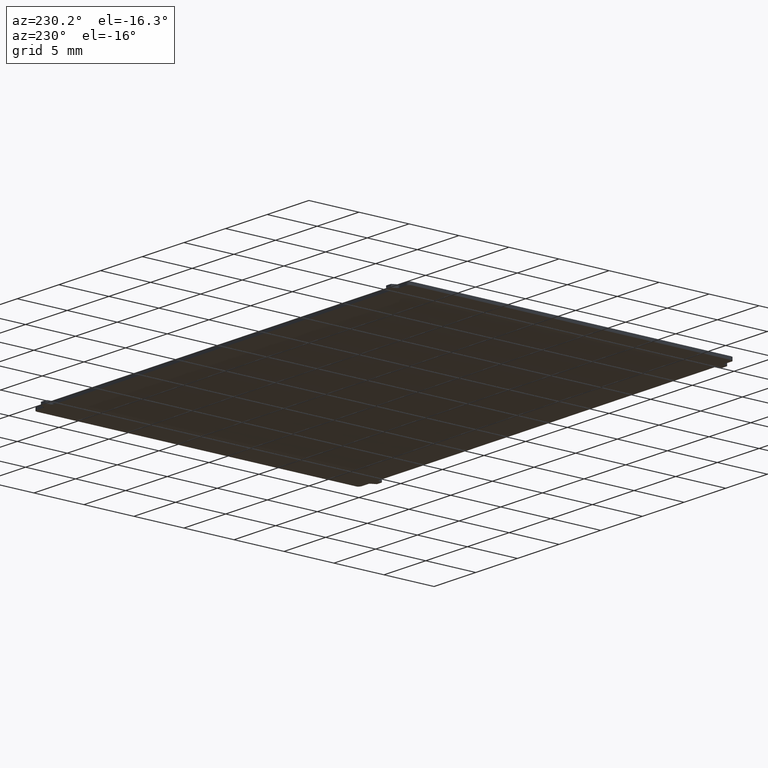
[diagram: clean part render]
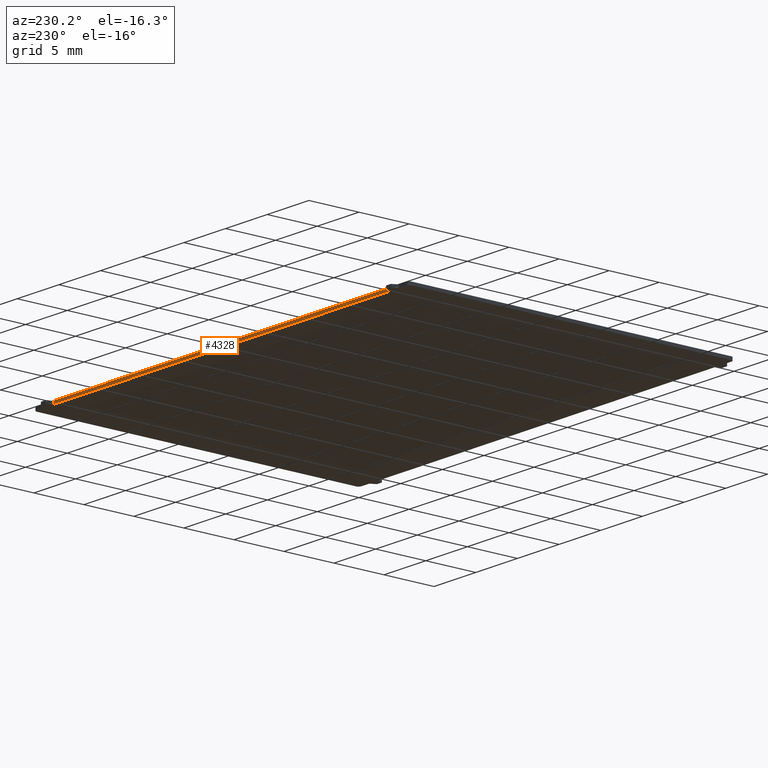
[diagram: same view with one face highlighted and labeled with its STEP entity id]
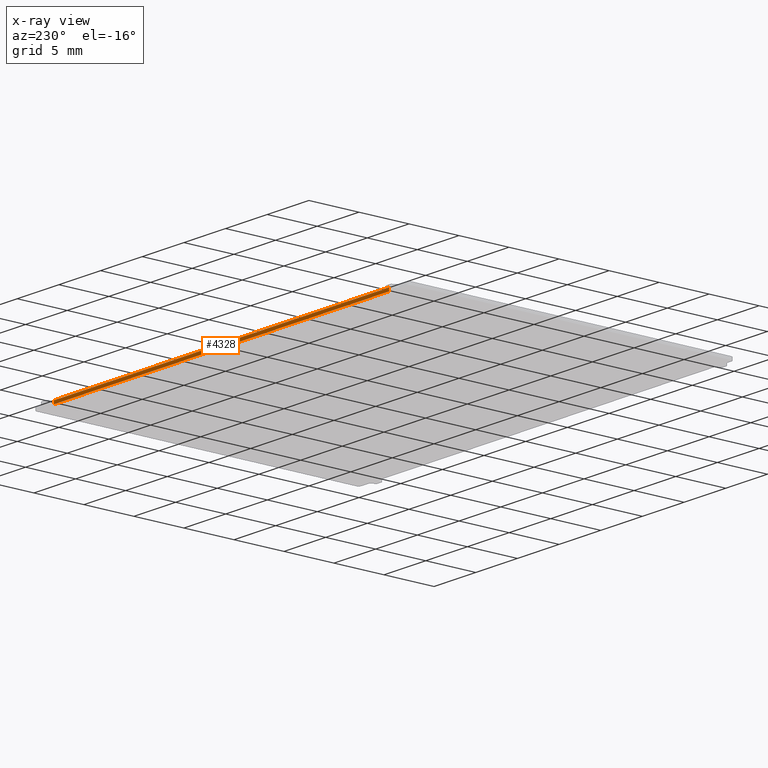
[diagram: x-ray of the same camera — body ghosted, the highlighted face saturated]
A machine part, auxiliary view. The second image highlights one B-rep face of the part: STEP entity #4328.
The next image is the same camera in x-ray: the body ghosted, the highlighted face saturated — about 0% of this face is hidden behind the body in this view.
In plain terms, the highlighted planar face has unit normal (0.0001, -1, 0).
Its self-contained STEP definition (entity closure, byte-faithful):
#83 = PLANE('',#84);
#84 = AXIS2_PLACEMENT_3D('',#85,#86,#87);
#85 = CARTESIAN_POINT('',(1.10000034,3.921760000011E-003,0.30000194));
#86 = DIRECTION('',(0.E+000,0.E+000,1.));
#87 = DIRECTION('',(1.,0.E+000,-0.E+000));
#137 = PLANE('',#138);
#138 = AXIS2_PLACEMENT_3D('',#139,#140,#141);
#139 = CARTESIAN_POINT('',(1.10000034,3.921760000011E-003,0.E+000));
#140 = DIRECTION('',(0.E+000,0.E+000,1.));
#141 = DIRECTION('',(1.,0.E+000,-0.E+000));
#4220 = PLANE('',#4221);
#4221 = AXIS2_PLACEMENT_3D('',#4222,#4223,#4224);
#4222 = CARTESIAN_POINT('',(42.6780325,32.51160376,0.E+000));
#4223 = DIRECTION('',(0.147066699383,-0.989126577306,0.E+000));
#4224 = DIRECTION('',(-0.989126577306,-0.147066699383,0.E+000));
#4258 = VERTEX_POINT('',#4259);
#4259 = CARTESIAN_POINT('',(42.59999608,32.50000104,0.30000194));
#4280 = EDGE_CURVE('',#4281,#4258,#4283,.T.);
#4281 = VERTEX_POINT('',#4282);
#4282 = CARTESIAN_POINT('',(42.59999608,32.50000104,0.E+000));
#4283 = SURFACE_CURVE('',#4284,(#4288,#4295),.PCURVE_S1.);
#4284 = LINE('',#4285,#4286);
#4285 = CARTESIAN_POINT('',(42.59999608,32.50000104,0.E+000));
#4286 = VECTOR('',#4287,1.);
#4287 = DIRECTION('',(0.E+000,0.E+000,1.));
#4288 = PCURVE('',#4220,#4289);
#4289 = DEFINITIONAL_REPRESENTATION('',(#4290),#4294);
#4290 = LINE('',#4291,#4292);
#4291 = CARTESIAN_POINT('',(7.889427075406E-002,0.E+000));
#4292 = VECTOR('',#4293,1.);
#4293 = DIRECTION('',(0.E+000,-1.));
#4294 = ( GEOMETRIC_REPRESENTATION_CONTEXT(2) 
PARAMETRIC_REPRESENTATION_CONTEXT() REPRESENTATION_CONTEXT('2D SPACE',''
  ) );
#4295 = PCURVE('',#4296,#4301);
#4296 = PLANE('',#4297);
#4297 = AXIS2_PLACEMENT_3D('',#4298,#4299,#4300);
#4298 = CARTESIAN_POINT('',(42.59999608,32.50000104,0.E+000));
#4299 = DIRECTION('',(9.74930507084E-005,-0.999999995248,0.E+000));
#4300 = DIRECTION('',(-0.999999995248,-9.74930507084E-005,0.E+000));
#4301 = DEFINITIONAL_REPRESENTATION('',(#4302),#4306);
#4302 = LINE('',#4303,#4304);
#4303 = CARTESIAN_POINT('',(0.E+000,0.E+000));
#4304 = VECTOR('',#4305,1.);
#4305 = DIRECTION('',(0.E+000,-1.));
#4306 = ( GEOMETRIC_REPRESENTATION_CONTEXT(2) 
PARAMETRIC_REPRESENTATION_CONTEXT() REPRESENTATION_CONTEXT('2D SPACE',''
  ) );
#4328 = ADVANCED_FACE('',(#4329),#4296,.F.);
#4329 = FACE_BOUND('',#4330,.F.);
#4330 = EDGE_LOOP('',(#4331,#4332,#4355,#4383));
#4331 = ORIENTED_EDGE('',*,*,#4280,.T.);
#4332 = ORIENTED_EDGE('',*,*,#4333,.T.);
#4333 = EDGE_CURVE('',#4258,#4334,#4336,.T.);
#4334 = VERTEX_POINT('',#4335);
#4335 = CARTESIAN_POINT('',(2.40000282,32.49608182,0.30000194));
#4336 = SURFACE_CURVE('',#4337,(#4341,#4348),.PCURVE_S1.);
#4337 = LINE('',#4338,#4339);
#4338 = CARTESIAN_POINT('',(42.59999608,32.50000104,0.30000194));
#4339 = VECTOR('',#4340,1.);
#4340 = DIRECTION('',(-0.999999995248,-9.74930507084E-005,0.E+000));
#4341 = PCURVE('',#4296,#4342);
#4342 = DEFINITIONAL_REPRESENTATION('',(#4343),#4347);
#4343 = LINE('',#4344,#4345);
#4344 = CARTESIAN_POINT('',(0.E+000,-0.30000194));
#4345 = VECTOR('',#4346,1.);
#4346 = DIRECTION('',(1.,0.E+000));
#4347 = ( GEOMETRIC_REPRESENTATION_CONTEXT(2) 
PARAMETRIC_REPRESENTATION_CONTEXT() REPRESENTATION_CONTEXT('2D SPACE',''
  ) );
#4348 = PCURVE('',#83,#4349);
#4349 = DEFINITIONAL_REPRESENTATION('',(#4350),#4354);
#4350 = LINE('',#4351,#4352);
#4351 = CARTESIAN_POINT('',(41.49999574,32.49607928));
#4352 = VECTOR('',#4353,1.);
#4353 = DIRECTION('',(-0.999999995248,-9.74930507084E-005));
#4354 = ( GEOMETRIC_REPRESENTATION_CONTEXT(2) 
PARAMETRIC_REPRESENTATION_CONTEXT() REPRESENTATION_CONTEXT('2D SPACE',''
  ) );
#4355 = ORIENTED_EDGE('',*,*,#4356,.F.);
#4356 = EDGE_CURVE('',#4357,#4334,#4359,.T.);
#4357 = VERTEX_POINT('',#4358);
#4358 = CARTESIAN_POINT('',(2.40000282,32.49608182,0.E+000));
#4359 = SURFACE_CURVE('',#4360,(#4364,#4371),.PCURVE_S1.);
#4360 = LINE('',#4361,#4362);
#4361 = CARTESIAN_POINT('',(2.40000282,32.49608182,0.E+000));
#4362 = VECTOR('',#4363,1.);
#4363 = DIRECTION('',(0.E+000,0.E+000,1.));
#4364 = PCURVE('',#4296,#4365);
#4365 = DEFINITIONAL_REPRESENTATION('',(#4366),#4370);
#4366 = LINE('',#4367,#4368);
#4367 = CARTESIAN_POINT('',(40.199993451048,0.E+000));
#4368 = VECTOR('',#4369,1.);
#4369 = DIRECTION('',(0.E+000,-1.));
#4370 = ( GEOMETRIC_REPRESENTATION_CONTEXT(2) 
PARAMETRIC_REPRESENTATION_CONTEXT() REPRESENTATION_CONTEXT('2D SPACE',''
  ) );
#4371 = PCURVE('',#4372,#4377);
#4372 = PLANE('',#4373);
#4373 = AXIS2_PLACEMENT_3D('',#4374,#4375,#4376);
#4374 = CARTESIAN_POINT('',(2.40000282,32.49608182,0.E+000));
#4375 = DIRECTION('',(-0.195084651288,-0.980786408364,0.E+000));
#4376 = DIRECTION('',(-0.980786408364,0.195084651288,0.E+000));
#4377 = DEFINITIONAL_REPRESENTATION('',(#4378),#4382);
#4378 = LINE('',#4379,#4380);
#4379 = CARTESIAN_POINT('',(0.E+000,0.E+000));
#4380 = VECTOR('',#4381,1.);
#4381 = DIRECTION('',(0.E+000,-1.));
#4382 = ( GEOMETRIC_REPRESENTATION_CONTEXT(2) 
PARAMETRIC_REPRESENTATION_CONTEXT() REPRESENTATION_CONTEXT('2D SPACE',''
  ) );
#4383 = ORIENTED_EDGE('',*,*,#4384,.F.);
#4384 = EDGE_CURVE('',#4281,#4357,#4385,.T.);
#4385 = SURFACE_CURVE('',#4386,(#4390,#4397),.PCURVE_S1.);
#4386 = LINE('',#4387,#4388);
#4387 = CARTESIAN_POINT('',(42.59999608,32.50000104,0.E+000));
#4388 = VECTOR('',#4389,1.);
#4389 = DIRECTION('',(-0.999999995248,-9.74930507084E-005,0.E+000));
#4390 = PCURVE('',#4296,#4391);
#4391 = DEFINITIONAL_REPRESENTATION('',(#4392),#4396);
#4392 = LINE('',#4393,#4394);
#4393 = CARTESIAN_POINT('',(0.E+000,0.E+000));
#4394 = VECTOR('',#4395,1.);
#4395 = DIRECTION('',(1.,0.E+000));
#4396 = ( GEOMETRIC_REPRESENTATION_CONTEXT(2) 
PARAMETRIC_REPRESENTATION_CONTEXT() REPRESENTATION_CONTEXT('2D SPACE',''
  ) );
#4397 = PCURVE('',#137,#4398);
#4398 = DEFINITIONAL_REPRESENTATION('',(#4399),#4403);
#4399 = LINE('',#4400,#4401);
#4400 = CARTESIAN_POINT('',(41.49999574,32.49607928));
#4401 = VECTOR('',#4402,1.);
#4402 = DIRECTION('',(-0.999999995248,-9.74930507084E-005));
#4403 = ( GEOMETRIC_REPRESENTATION_CONTEXT(2) 
PARAMETRIC_REPRESENTATION_CONTEXT() REPRESENTATION_CONTEXT('2D SPACE',''
  ) );